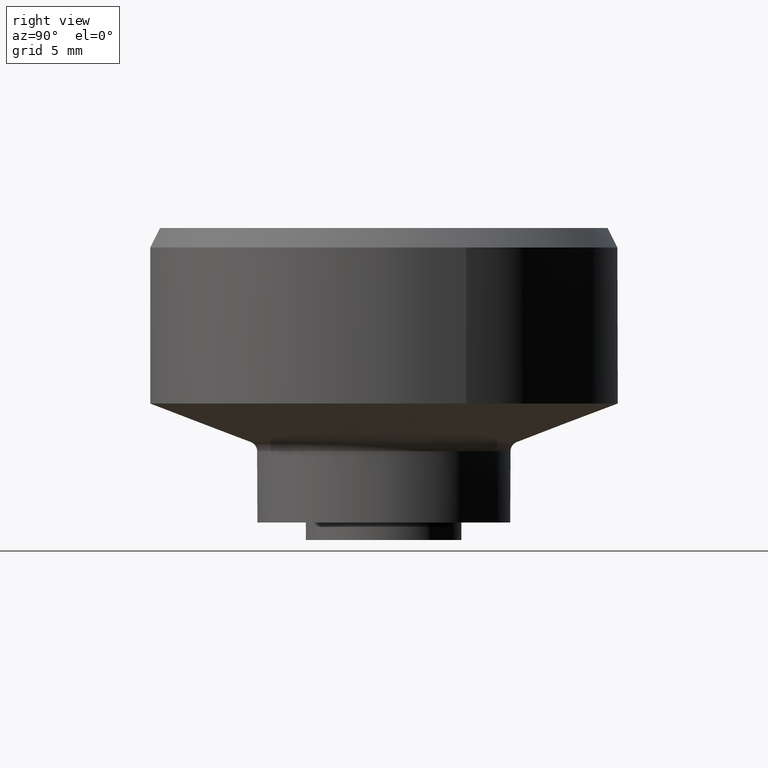
[diagram: clean part render]
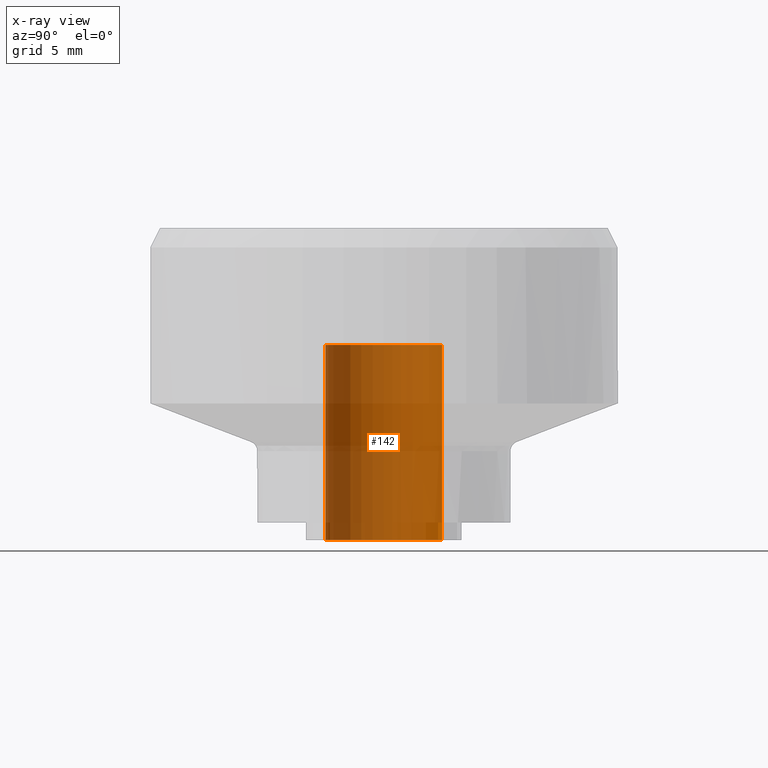
[diagram: x-ray — body ghosted, one internal face saturated and labeled with its STEP entity id]
A machine part, right view, then the same camera in x-ray: the body is ghosted and one INTERNAL B-rep face — a face not visible from any outside direction — is saturated and labeled: STEP entity #142.
In plain terms, the highlighted face is a freeform B-spline surface patch.
Its self-contained STEP definition (entity closure, byte-faithful):
#44=CARTESIAN_POINT('',(-0.235377287183537,-2.990752001199383,10.250000000000000));
#45=CARTESIAN_POINT('',(-3.226129288382921,-2.755374714015846,10.250000000000002));
#46=CARTESIAN_POINT('',(-2.990752001199383,0.235377287183537,10.250000000000000));
#47=CARTESIAN_POINT('',(-2.755374714015846,3.226129288382921,10.250000000000002));
#48=CARTESIAN_POINT('',(0.235377287183537,2.990752001199383,10.250000000000000));
#49=CARTESIAN_POINT('',(-0.235377287183537,-2.990752001199383,-0.256250000000001));
#50=CARTESIAN_POINT('',(-3.226129288382921,-2.755374714015846,-0.256250000000001));
#51=CARTESIAN_POINT('',(-2.990752001199383,0.235377287183537,-0.256250000000001));
#52=CARTESIAN_POINT('',(-2.755374714015846,3.226129288382921,-0.256250000000001));
#53=CARTESIAN_POINT('',(0.235377287183537,2.990752001199383,-0.256250000000001));
#61=(BOUNDED_SURFACE()B_SPLINE_SURFACE(2,1,((#44,#49),(#45,#50),(#46,#51),(#47,#52),(#48,#53)),.UNSPECIFIED.,.F.,.F.,.U.)B_SPLINE_SURFACE_WITH_KNOTS((3,2,3),(2,2),(0.0,4.970562748477140,9.941125496954280),(0.0,10.506250000000000),.UNSPECIFIED.)GEOMETRIC_REPRESENTATION_ITEM()RATIONAL_B_SPLINE_SURFACE(((1.0,1.0),(0.707106781186548,0.707106781186548),(1.0,1.0),(0.707106781186548,0.707106781186548),(1.0,1.0)))REPRESENTATION_ITEM('')SURFACE());
#62=CARTESIAN_POINT('',(-3.0,0.0,0.0));
#63=VERTEX_POINT('',#62);
#64=CARTESIAN_POINT('',(-0.235377287218468,-2.990752001196634,2.775558E-017));
#65=VERTEX_POINT('',#64);
#66=CARTESIAN_POINT('',(-3.0,0.0,0.0));
#67=CARTESIAN_POINT('',(-3.0,-2.773171474909641,0.0));
#68=CARTESIAN_POINT('',(-0.235377287218468,-2.990752001196635,2.775558E-017));
#76=(BOUNDED_CURVE()B_SPLINE_CURVE(2,(#66,#67,#68),.UNSPECIFIED.,.F.,.U.)B_SPLINE_CURVE_WITH_KNOTS((3,3),(0.0,0.236331300628763),.UNSPECIFIED.)CURVE()GEOMETRIC_REPRESENTATION_ITEM()RATIONAL_B_SPLINE_CURVE((1.0,0.723120658609888,0.969723356163459))REPRESENTATION_ITEM(''));
#77=EDGE_CURVE('',#63,#65,#76,.T.);
#78=ORIENTED_EDGE('',*,*,#77,.T.);
#79=CARTESIAN_POINT('',(-0.235377287218468,-2.990752001196634,10.0));
#80=VERTEX_POINT('',#79);
#81=CARTESIAN_POINT('',(-0.235377287218468,-2.990752001196634,10.0));
#82=CARTESIAN_POINT('',(-0.235377287218468,-2.990752001196634,2.775558E-017));
#83=QUASI_UNIFORM_CURVE('',1,(#81,#82),.UNSPECIFIED.,.F.,.U.);
#84=EDGE_CURVE('',#80,#65,#83,.T.);
#85=ORIENTED_EDGE('',*,*,#84,.F.);
#86=CARTESIAN_POINT('',(-3.0,0.0,10.0));
#87=VERTEX_POINT('',#86);
#88=CARTESIAN_POINT('',(-3.0,0.0,10.0));
#89=CARTESIAN_POINT('',(-3.0,-2.773171474909641,9.999999999999998));
#90=CARTESIAN_POINT('',(-0.235377287218468,-2.990752001196635,10.0));
#98=(BOUNDED_CURVE()B_SPLINE_CURVE(2,(#88,#89,#90),.UNSPECIFIED.,.F.,.U.)B_SPLINE_CURVE_WITH_KNOTS((3,3),(0.0,0.236331300628763),.UNSPECIFIED.)CURVE()GEOMETRIC_REPRESENTATION_ITEM()RATIONAL_B_SPLINE_CURVE((1.0,0.723120658609888,0.969723356163459))REPRESENTATION_ITEM(''));
#99=EDGE_CURVE('',#87,#80,#98,.T.);
#100=ORIENTED_EDGE('',*,*,#99,.F.);
#101=CARTESIAN_POINT('',(0.235377287218468,2.990752001196634,10.0));
#102=VERTEX_POINT('',#101);
#103=CARTESIAN_POINT('',(0.235377287218468,2.990752001196634,9.999999999999998));
#104=CARTESIAN_POINT('',(0.117870321058103,3.000000000000000,10.0));
#105=CARTESIAN_POINT('',(0.0,3.0,10.0));
#106=CARTESIAN_POINT('',(-3.0,3.0,10.000000000000002));
#107=CARTESIAN_POINT('',(-3.0,0.0,10.0));
#115=(BOUNDED_CURVE()B_SPLINE_CURVE(2,(#103,#104,#105,#106,#107),.UNSPECIFIED.,.F.,.U.)B_SPLINE_CURVE_WITH_KNOTS((3,2,3),(0.736331300628762,0.750000000000000,1.0),.UNSPECIFIED.)CURVE()GEOMETRIC_REPRESENTATION_ITEM()RATIONAL_B_SPLINE_CURVE((0.969723356163458,0.983986122576659,1.0,0.707106781186548,1.0))REPRESENTATION_ITEM(''));
#116=EDGE_CURVE('',#102,#87,#115,.T.);
#117=ORIENTED_EDGE('',*,*,#116,.F.);
#118=CARTESIAN_POINT('',(0.235377287218468,2.990752001196634,2.775558E-017));
#119=VERTEX_POINT('',#118);
#120=CARTESIAN_POINT('',(0.235377287218468,2.990752001196634,10.0));
#121=CARTESIAN_POINT('',(0.235377287218468,2.990752001196634,2.775558E-017));
#122=QUASI_UNIFORM_CURVE('',1,(#120,#121),.UNSPECIFIED.,.F.,.U.);
#123=EDGE_CURVE('',#102,#119,#122,.T.);
#124=ORIENTED_EDGE('',*,*,#123,.T.);
#125=CARTESIAN_POINT('',(0.235377287218468,2.990752001196634,2.775558E-017));
#126=CARTESIAN_POINT('',(0.117870321058103,3.000000000000000,0.0));
#127=CARTESIAN_POINT('',(0.0,3.0,0.0));
#128=CARTESIAN_POINT('',(-3.0,3.0,0.0));
#129=CARTESIAN_POINT('',(-3.0,0.0,0.0));
#137=(BOUNDED_CURVE()B_SPLINE_CURVE(2,(#125,#126,#127,#128,#129),.UNSPECIFIED.,.F.,.U.)B_SPLINE_CURVE_WITH_KNOTS((3,2,3),(0.736331300628762,0.750000000000000,1.0),.UNSPECIFIED.)CURVE()GEOMETRIC_REPRESENTATION_ITEM()RATIONAL_B_SPLINE_CURVE((0.969723356163458,0.983986122576659,1.0,0.707106781186548,1.0))REPRESENTATION_ITEM(''));
#138=EDGE_CURVE('',#119,#63,#137,.T.);
#139=ORIENTED_EDGE('',*,*,#138,.T.);
#140=EDGE_LOOP('',(#78,#85,#100,#117,#124,#139));
#141=FACE_OUTER_BOUND('',#140,.T.);
#142=ADVANCED_FACE('',(#141),#61,.T.);